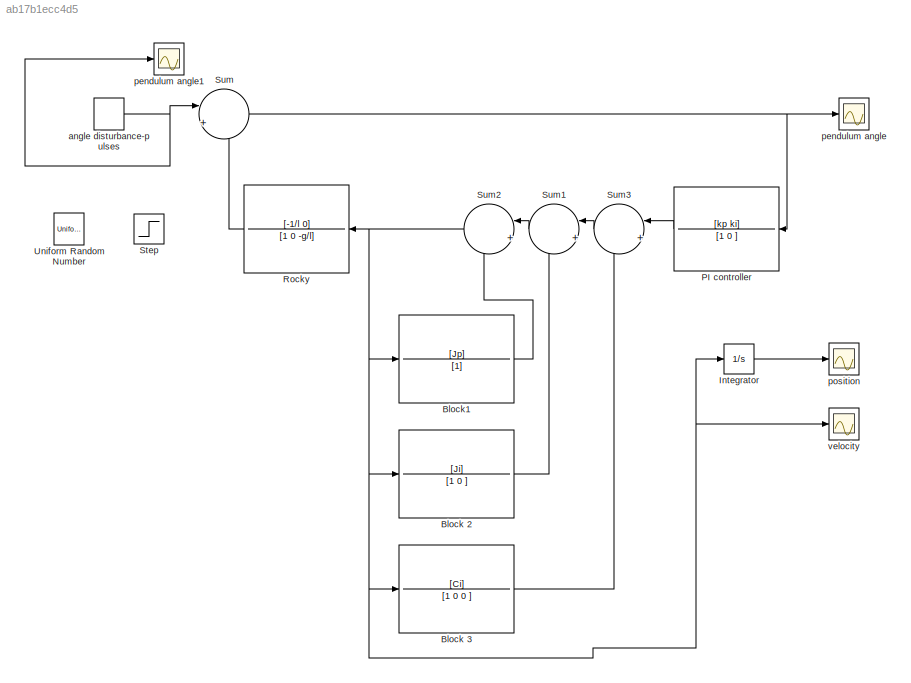
MODEL slx_ab17b1ecc4d5
KIND model
CONFIG AbsTol = auto
CONFIG EnableMultiTasking = off
CONFIG FixedStep = auto
CONFIG MaxStep = auto
CONFIG MinStep = auto
CONFIG RelTol = 1e-3
CONFIG SampleTimeConstraint = Unconstrained
CONFIG SolverName = VariableStepAuto
CONFIG StartTime = 0.0
CONFIG StopTime = 2
WORKSPACE source: mxarray member
WORKSPACE m = 1000
BLOCK [TransferFcn] Block 2
  Denominator = [1 0 ]
  Numerator = [Ji]
BLOCK [TransferFcn] Block 3
  Denominator = [1 0 0 ]
  Numerator = [Ci]
BLOCK [TransferFcn] Block1
  Denominator = [1]
  Numerator = [Jp]
BLOCK [Integrator] Integrator
  Ports = [1, 1]
BLOCK [TransferFcn] PI controller
  Denominator = [1 0 ]
  Numerator = [kp  ki]
BLOCK [TransferFcn] Rocky
  Denominator = [1 0 -g/l]
  Numerator = [-1/l    0]
BLOCK [Step] Step
  After = .1
  SampleTime = 0
BLOCK [Sum] Sum
  Inputs = |++
  Ports = [2, 1]
BLOCK [Sum] Sum1
  Inputs = |++
  Ports = [2, 1]
BLOCK [Sum] Sum2
  Inputs = |++
  Ports = [2, 1]
BLOCK [Sum] Sum3
  Inputs = |++
  Ports = [2, 1]
BLOCK [UniformRandomNumber] Uniform Random Number
  SampleTime = 20
BLOCK [DiscretePulseGenerator] angle disturbance-pulses
  Amplitude = .1
  Period = 10
  PhaseDelay = .5
  Ports = [0, 1]
  PulseType = Time based
  PulseWidth = .1
BLOCK [Scope] pendulum angle
  Floating = off
  NumInputPorts = 1
  Ports = [1]
  ScopeSpecificationString = Simulink.scopes.TimeScopeBlockCfg('CurrentConfiguration', extmgr.ConfigurationSet(extmgr.Configuration('Core','General UI',true),extmgr.Configuration('Core','Source UI',true),extmgr.Configuration('Sources','WiredSimulink',true),extmgr.Configuration('Visuals','Time Domain',true,'SerializedDisplays',{struct('MinYLimReal','-0.08756','MaxYLimReal','0.12084','YLabelReal','','MinYLimMag','0.00000','MaxY...<+1404ch>
BLOCK [Scope] pendulum angle1
  Floating = off
  NumInputPorts = 1
  Ports = [1]
  ScopeSpecificationString = Simulink.scopes.TimeScopeBlockCfg('CurrentConfiguration', extmgr.ConfigurationSet(extmgr.Configuration('Core','General UI',true),extmgr.Configuration('Core','Source UI',true),extmgr.Configuration('Sources','WiredSimulink',true,'DataLoggingVariableName','ScopeData1'),extmgr.Configuration('Visuals','Time Domain',true,'SerializedDisplays',{struct('MinYLimReal','-0.0125','MaxYLimReal','0.1125','YLabel...<+1480ch>
BLOCK [Scope] position
  Floating = off
  NumInputPorts = 1
  Ports = [1]
  ScopeSpecificationString = Simulink.scopes.TimeScopeBlockCfg('CurrentConfiguration', extmgr.ConfigurationSet(extmgr.Configuration('Core','General UI',true),extmgr.Configuration('Core','Source UI',true),extmgr.Configuration('Sources','WiredSimulink',true,'DataLoggingVariableName','ScopeData1'),extmgr.Configuration('Visuals','Time Domain',true,'SerializedDisplays',{struct('MinYLimReal','-0.02691','MaxYLimReal','0.0444','YLabe...<+1446ch>
BLOCK [Scope] velocity 
  Floating = off
  NumInputPorts = 1
  Ports = [1]
  ScopeSpecificationString = Simulink.scopes.TimeScopeBlockCfg('CurrentConfiguration', extmgr.ConfigurationSet(extmgr.Configuration('Core','General UI',true),extmgr.Configuration('Core','Source UI',true),extmgr.Configuration('Sources','WiredSimulink',true,'DataLoggingVariableName','ScopeData2'),extmgr.Configuration('Visuals','Time Domain',true,'SerializedDisplays',{struct('MinYLimReal','-6.16753','MaxYLimReal','8.01153','YLab...<+1363ch>
LINE Block 2:1 -> Sum1:2
LINE Block 3:1 -> Sum3:2
LINE Block1:1 -> Sum2:2
LINE Integrator:1 -> position:1
LINE PI controller:1 -> Sum3:1
LINE Rocky:1 -> Sum:2
LINE Sum1:1 -> Sum2:1
NET Sum2:1 -> Block 2:1, Block 3:1, Block1:1, Integrator:1, Rocky:1, velocity :1
LINE Sum3:1 -> Sum1:1
NET Sum:1 -> PI controller:1, pendulum angle:1
NET angle disturbance-pulses:1 -> Sum:1, pendulum angle1:1
note: NET lines group one-source signal fan-out (src -> all destinations, sorted); 1:1 wires keep LINE
